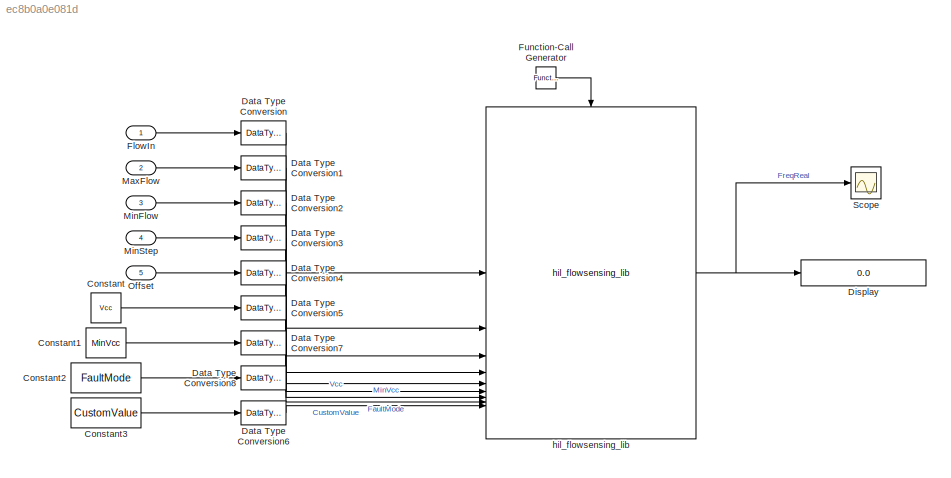
MODEL slx_ec8b0a0e081d
KIND model
CONFIG AbsTol = auto
CONFIG EnableMultiTasking = off
CONFIG FixedStep = auto
CONFIG MaxStep = auto
CONFIG MinStep = auto
CONFIG RelTol = 1e-3
CONFIG SampleTimeConstraint = Unconstrained
CONFIG SolverName = VariableStepAuto
CONFIG StartTime = 0.0
CONFIG StopTime = 10.0
BLOCK [Constant] Constant
  Value = Vcc
BLOCK [Constant] Constant1
  Value = MinVcc
BLOCK [Constant] Constant2
  Value = FaultMode
BLOCK [Constant] Constant3
  Value = CustomValue
BLOCK [DataTypeConversion] Data Type Conversion
  OutDataTypeStr = single
  RndMeth = Floor
  SaturateOnIntegerOverflow = off
BLOCK [DataTypeConversion] Data Type Conversion1
  OutDataTypeStr = single
  RndMeth = Floor
  SaturateOnIntegerOverflow = off
BLOCK [DataTypeConversion] Data Type Conversion2
  OutDataTypeStr = single
  RndMeth = Floor
  SaturateOnIntegerOverflow = off
BLOCK [DataTypeConversion] Data Type Conversion3
  OutDataTypeStr = single
  RndMeth = Floor
  SaturateOnIntegerOverflow = off
BLOCK [DataTypeConversion] Data Type Conversion4
  OutDataTypeStr = single
  RndMeth = Floor
  SaturateOnIntegerOverflow = off
BLOCK [DataTypeConversion] Data Type Conversion5
  OutDataTypeStr = single
  RndMeth = Floor
  SaturateOnIntegerOverflow = off
BLOCK [DataTypeConversion] Data Type Conversion6
  OutDataTypeStr = single
  RndMeth = Floor
  SaturateOnIntegerOverflow = off
BLOCK [DataTypeConversion] Data Type Conversion7
  OutDataTypeStr = uint8
  RndMeth = Floor
  SaturateOnIntegerOverflow = off
BLOCK [DataTypeConversion] Data Type Conversion8
  OutDataTypeStr = single
  RndMeth = Floor
  SaturateOnIntegerOverflow = off
BLOCK [Display] Display
  Decimation = 1
  Format = long
BLOCK [Inport] FlowIn
BLOCK [Reference] Function-Call Generator  REF=simulink/Ports &
Subsystems/Function-Call
Generator
  SourceBlock = simulink/Ports &\nSubsystems/Function-Call\nGenerator
  SourceType = Function-Call Generator
BLOCK [Inport] MaxFlow
  Port = 2
BLOCK [Inport] MinFlow
  Port = 3
BLOCK [Inport] MinStep
  Port = 4
BLOCK [Inport] Offset
  Port = 5
BLOCK [Scope] Scope
  Floating = off
  NumInputPorts = 1
  ScopeSpecificationString = Simulink.scopes.TimeScopeBlockCfg('CurrentConfiguration', extmgr.ConfigurationSet(extmgr.Configuration('Core','General UI',true),extmgr.Configuration('Core','Source UI',true),extmgr.Configuration('Sources','WiredSimulink',true),extmgr.Configuration('Visuals','Time Domain',true,'SerializedDisplays',{struct('MinYLimReal','-5750.00000','MaxYLimReal','51750.00000','YLabelReal','','MinYLimMag','  0.000...<+1451ch>
BLOCK [Reference] hil_flowsensing_lib  REF=hil_flowsensing_lib/hil_flowsensing_lib  (lib defined in slx_31749b2f5c98)
  SourceBlock = hil_flowsensing_lib/hil_flowsensing_lib
  SourceType = Flow Meter
LINE Constant1:1 -> Data Type Conversion7:1
LINE Constant2:1 -> Data Type Conversion8:1
LINE Constant3:1 -> Data Type Conversion6:1
LINE Constant:1 -> Data Type Conversion5:1
LINE Data Type Conversion1:1 -> hil_flowsensing_lib:2
LINE Data Type Conversion2:1 -> hil_flowsensing_lib:3
LINE Data Type Conversion3:1 -> hil_flowsensing_lib:4
LINE Data Type Conversion4:1 -> hil_flowsensing_lib:5
LINE Data Type Conversion5:1 -> hil_flowsensing_lib:6
LINE Data Type Conversion6:1 -> hil_flowsensing_lib:9
LINE Data Type Conversion7:1 -> hil_flowsensing_lib:7
LINE Data Type Conversion8:1 -> hil_flowsensing_lib:8
LINE Data Type Conversion:1 -> hil_flowsensing_lib:1
LINE FlowIn:1 -> Data Type Conversion:1
LINE Function-Call Generator:1 -> hil_flowsensing_lib:trigger
LINE MaxFlow:1 -> Data Type Conversion1:1
LINE MinFlow:1 -> Data Type Conversion2:1
LINE MinStep:1 -> Data Type Conversion3:1
LINE Offset:1 -> Data Type Conversion4:1
NET hil_flowsensing_lib:1 -> Display:1, Scope:1
note: NET lines group one-source signal fan-out (src -> all destinations, sorted); 1:1 wires keep LINE
CHART Test Sequence states=4 transitions=4
  STATE_LABEL 'FlowIn_5'
  STATE_LABEL 'Run\n\n%% Initialize data outputs.\nFlowIn = single(5);\nMaxFlow = single(5);\nMinFlow = single(0);\nMinStep = single(1);\nOffset = single(0);\n\n\nsend(D1);'
  STATE_LABEL 'Run\n\n%% Initialize data outputs.\nFlowIn = single(5);\nMaxFlow = single(5);\nMinFlow = single(0);\nMinStep = single(1);\nOffset = single(0);\n\n\nsend(D1);'
  STATE_LABEL 'FlowIn_zero'
  STATE_LABEL 'Run\n\n%% Initialize data outputs.\nFlowIn = single(0);\nMaxFlow = single(5);\nMinFlow = single(0);\nMinStep = single(1);\nOffset = single(0);\n\n\nsend(D1);'
  STATE_LABEL 'Run\n\n%% Initialize data outputs.\nFlowIn = single(0);\nMaxFlow = single(5);\nMinFlow = single(0);\nMinStep = single(1);\nOffset = single(0);\n\n\nsend(D1);'
CHART Test Sequence states=6 transitions=6
  STATE_LABEL 'FlowIn_5'
  STATE_LABEL 'Run\n\n%% Initialize data outputs.\nFlowIn = single(5);\nMaxFlow = single(0);\nMinFlow = single(0);\nMinStep = single(0);\nOffset = single(0);\n\n\nsend(D1);'
  STATE_LABEL 'Run\n\n%% Initialize data outputs.\nFlowIn = single(5);\nMaxFlow = single(0);\nMinFlow = single(0);\nMinStep = single(0);\nOffset = single(0);\n\n\nsend(D1);'
  STATE_LABEL 'FlowIn_zero'
  STATE_LABEL 'Run\n\n%% Initialize data outputs.\nFlowIn = single(0);\nMaxFlow = single(0);\nMinFlow = single(0);\nMinStep = single(0);\nOffset = single(0);\n\n\nsend(D1);'
  STATE_LABEL 'Run\n\n%% Initialize data outputs.\nFlowIn = single(0);\nMaxFlow = single(0);\nMinFlow = single(0);\nMinStep = single(0);\nOffset = single(0);\n\n\nsend(D1);'
  STATE_LABEL 'FlowIn_lower_MinFlow'
  STATE_LABEL 'Run\n\n%% Initialize data outputs.\nFlowIn = single(2);\nMaxFlow = single(0);\nMinFlow = single(4);\nMinStep = single(0);\nOffset = single(0);\n\n\nsend(D1);'
  STATE_LABEL 'Run\n\n%% Initialize data outputs.\nFlowIn = single(2);\nMaxFlow = single(0);\nMinFlow = single(4);\nMinStep = single(0);\nOffset = single(0);\n\n\nsend(D1);'
